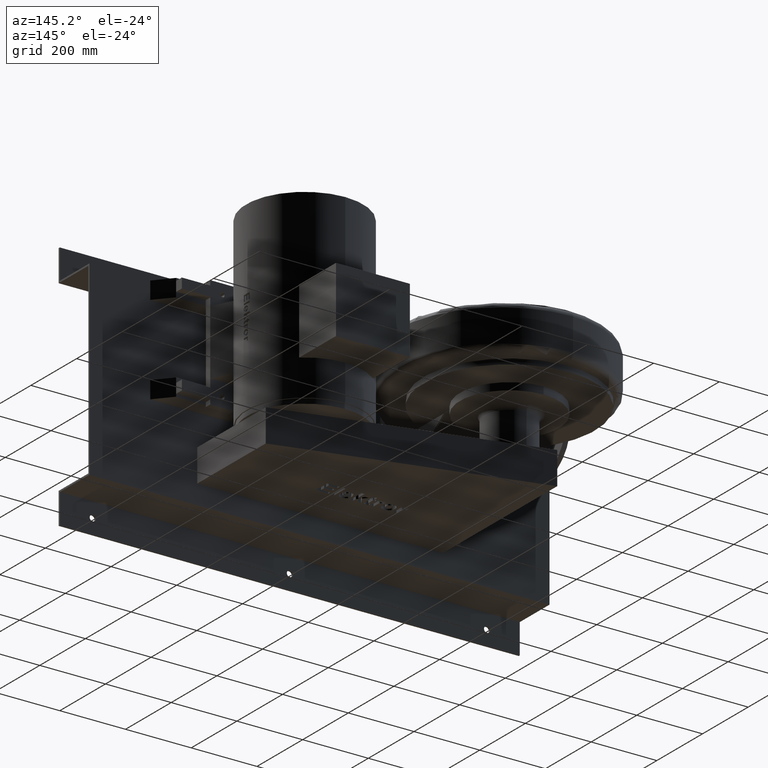
[diagram: clean part render]
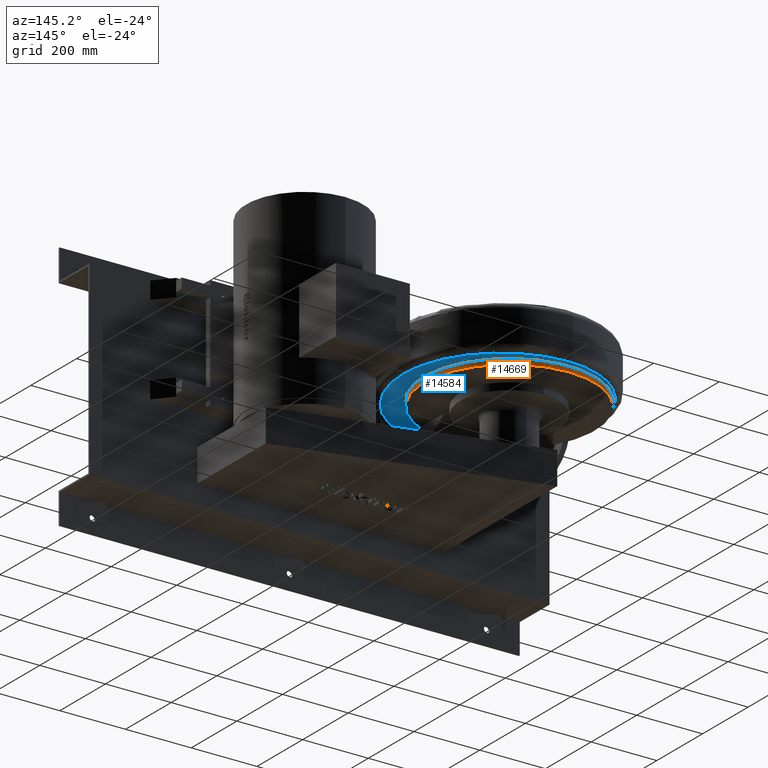
[diagram: same view with the hole feature highlighted: cylindrical wall and planar end face, labeled with their STEP entity ids]
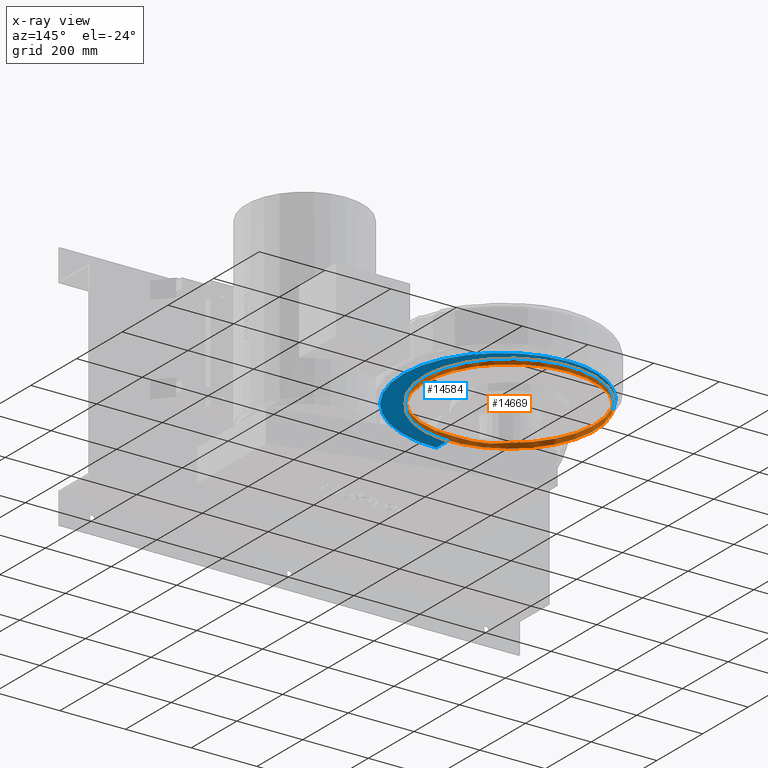
[diagram: x-ray of the same camera — body ghosted, the hole faces saturated]
A machine part, auxiliary view. The highlighted faces form one hole feature of diameter 520 mm: the cylindrical wall (entity #14669, orange) and its adjacent planar end face (entity #14584, blue) — they share a circular edge in the B-rep.
The next image is the same camera in x-ray (body ghosted, the hole faces saturated) — the bore reads through the body.
Wall:
#9930=CARTESIAN_POINT('',(-129.29514497830263,-201.28432938077296,-83.499999999999972));
#9931=VERTEX_POINT('',#9930);
#9932=CARTESIAN_POINT('',(15.000000000000053,14.999999999999837,-83.500000000000028));
#9933=DIRECTION('',(0.0,0.0,1.0));
#9934=DIRECTION('',(-1.0,0.0,0.0));
#9935=AXIS2_PLACEMENT_3D('',#9932,#9933,#9934);
#9936=CIRCLE('',#9935,260.0);
#9937=EDGE_CURVE('',#9931,#9931,#9936,.T.);
#14195=CARTESIAN_POINT('',(-127.78385606986525,-202.28499820700932,-67.499999999999986));
#14196=VERTEX_POINT('',#14195);
#14197=CARTESIAN_POINT('',(8.607027E-014,-244.56694704834834,-67.499999999999986));
#14198=VERTEX_POINT('',#14197);
#14199=CARTESIAN_POINT('',(-127.78385606986531,-202.28499820700929,-67.500000000000256));
#14200=CARTESIAN_POINT('',(-120.63344954904909,-206.98372395399605,-69.049078235236763));
#14201=CARTESIAN_POINT('',(-112.82312566753743,-211.60967633237152,-70.048768758409707));
#14202=CARTESIAN_POINT('',(-104.36253827624421,-215.9817838190973,-70.625431110676359));
#14203=CARTESIAN_POINT('',(-89.961617963732721,-223.42362781906201,-71.606978631923369));
#14204=CARTESIAN_POINT('',(-73.798836964944726,-230.06681221311464,-71.373698312276673));
#14205=CARTESIAN_POINT('',(-55.982769801065757,-235.12286259230478,-70.638708982274224));
#14206=CARTESIAN_POINT('',(-48.504063494670518,-237.24525669356663,-70.330180209517522));
#14207=CARTESIAN_POINT('',(-40.678389705746142,-239.09366482581873,-69.927391824939889));
#14208=CARTESIAN_POINT('',(-32.835029463704061,-240.56175370388789,-69.486678590416815));
#14209=CARTESIAN_POINT('',(-21.993629649955963,-242.59100366794678,-68.877507491394255));
#14210=CARTESIAN_POINT('',(-11.025580335152949,-243.92979464158799,-68.194863992198293));
#14211=CARTESIAN_POINT('',(8.437695E-014,-244.56694704834834,-67.499999999999986));
#14212=B_SPLINE_CURVE_WITH_KNOTS('',3,(#14199,#14200,#14201,#14202,#14203,#14204,#14205,#14206,#14207,#14208,#14209,#14210,#14211),.UNSPECIFIED.,.F.,.U.,(4,3,3,3,4),(-14.804292424850814,-11.442916999399056,-5.721458499699528,-3.319743947891267,0.0),.UNSPECIFIED.);
#14213=EDGE_CURVE('',#14196,#14198,#14212,.T.);
#14567=CARTESIAN_POINT('',(15.000000000000053,14.99999999999984,-67.500000000000028));
#14568=DIRECTION('',(0.0,0.0,1.0));
#14569=DIRECTION('',(-1.0,0.0,0.0));
#14570=AXIS2_PLACEMENT_3D('',#14567,#14568,#14569);
#14571=CIRCLE('',#14570,260.0);
#14572=EDGE_CURVE('',#14198,#14196,#14571,.T.);
#14657=CARTESIAN_POINT('',(15.000000000000053,14.999999999999856,-3.543247E-014));
#14658=DIRECTION('',(-6.833984E-031,2.368476E-016,1.0));
#14659=DIRECTION('',(-1.0,0.0,0.0));
#14660=AXIS2_PLACEMENT_3D('',#14657,#14658,#14659);
#14661=CYLINDRICAL_SURFACE('',#14660,260.0);
#14662=ORIENTED_EDGE('',*,*,#9937,.T.);
#14663=EDGE_LOOP('',(#14662));
#14664=FACE_OUTER_BOUND('',#14663,.T.);
#14665=ORIENTED_EDGE('',*,*,#14213,.F.);
#14666=ORIENTED_EDGE('',*,*,#14572,.F.);
#14667=EDGE_LOOP('',(#14665,#14666));
#14668=FACE_BOUND('',#14667,.T.);
#14669=ADVANCED_FACE('',(#14664,#14668),#14661,.T.);
End face:
#13904=CARTESIAN_POINT('',(30.000000000000071,296.99999999999983,-67.500000000000114));
#13905=VERTEX_POINT('',#13904);
#13913=CARTESIAN_POINT('',(-155.19419237354339,222.33333333333317,-67.500000000000085));
#13914=VERTEX_POINT('',#13913);
#13915=CARTESIAN_POINT('',(30.000000000000053,29.99999999999984,-67.500000000000043));
#13916=DIRECTION('',(-8.203909E-017,2.038274E-016,1.0));
#13917=DIRECTION('',(-0.373383455282049,0.927677096473573,-2.197181E-016));
#13918=AXIS2_PLACEMENT_3D('',#13915,#13916,#13917);
#13919=CIRCLE('',#13918,267.0);
#13920=EDGE_CURVE('',#13905,#13914,#13919,.T.);
#13947=CARTESIAN_POINT('',(9.372842E-014,-327.00000000000017,-67.499999999999957));
#13948=VERTEX_POINT('',#13947);
#13956=CARTESIAN_POINT('',(327.00000000000011,-1.603162E-013,-67.500000000000028));
#13957=VERTEX_POINT('',#13956);
#13958=CARTESIAN_POINT('',(5.329071E-014,-1.603162E-013,-67.500000000000028));
#13959=DIRECTION('',(-1.184238E-016,1.184238E-016,1.0));
#13960=DIRECTION('',(0.707106781186548,-0.707106781186547,1.674765E-016));
#13961=AXIS2_PLACEMENT_3D('',#13958,#13959,#13960);
#13962=CIRCLE('',#13961,327.0);
#13963=EDGE_CURVE('',#13948,#13957,#13962,.T.);
#13982=CARTESIAN_POINT('',(30.000000000000053,-1.603162E-013,-67.500000000000028));
#13983=DIRECTION('',(1.184238E-016,1.184238E-016,1.0));
#13984=DIRECTION('',(0.707106781186548,0.707106781186547,-1.674765E-016));
#13985=AXIS2_PLACEMENT_3D('',#13982,#13983,#13984);
#13986=CIRCLE('',#13985,297.0);
#13987=EDGE_CURVE('',#13957,#13905,#13986,.T.);
#13999=CARTESIAN_POINT('',(-142.58879906388901,-202.93830878871341,-67.499999999999986));
#14000=VERTEX_POINT('',#13999);
#14036=CARTESIAN_POINT('',(30.000000000000053,14.99999999999984,-67.500000000000028));
#14037=DIRECTION('',(6.964126E-017,2.264128E-017,1.0));
#14038=DIRECTION('',(-0.951002462149348,-0.309183306447612,7.322932E-017));
#14039=AXIS2_PLACEMENT_3D('',#14036,#14037,#14038);
#14040=CIRCLE('',#14039,278.0);
#14041=EDGE_CURVE('',#13914,#14000,#14040,.T.);
#14195=CARTESIAN_POINT('',(-127.78385606986525,-202.28499820700932,-67.499999999999986));
#14196=VERTEX_POINT('',#14195);
#14197=CARTESIAN_POINT('',(8.607027E-014,-244.56694704834834,-67.499999999999986));
#14198=VERTEX_POINT('',#14197);
#14215=CARTESIAN_POINT('',(8.881784E-014,-261.37655472199538,-67.499999999999972));
#14216=VERTEX_POINT('',#14215);
#14217=CARTESIAN_POINT('',(8.847435E-014,-261.37655472199538,-67.499999999999972));
#14218=DIRECTION('',(0.0,1.0,0.0));
#14219=VECTOR('',#14218,16.809607673647008);
#14220=LINE('',#14217,#14219);
#14221=EDGE_CURVE('',#14216,#14198,#14220,.T.);
#14223=CARTESIAN_POINT('',(9.282007E-014,-317.97262118526442,-67.499999999999972));
#14224=VERTEX_POINT('',#14223);
#14225=CARTESIAN_POINT('',(8.712524E-014,-261.37655472199538,-67.499999999999972));
#14226=DIRECTION('',(0.0,-1.0,0.0));
#14227=VECTOR('',#14226,56.59606646326904);
#14228=LINE('',#14225,#14227);
#14229=EDGE_CURVE('',#14216,#14224,#14228,.T.);
#14231=CARTESIAN_POINT('',(9.282007E-014,-317.97262118526442,-67.499999999999957));
#14232=DIRECTION('',(0.0,-1.0,0.0));
#14233=VECTOR('',#14232,9.027378814735755);
#14234=LINE('',#14231,#14233);
#14235=EDGE_CURVE('',#14224,#13948,#14234,.T.);
#14255=CARTESIAN_POINT('',(-127.78385606986525,-202.28499820700932,-67.499999999999986));
#14256=CARTESIAN_POINT('',(-132.71883706787318,-202.50276840091072,-67.499999999999986));
#14257=CARTESIAN_POINT('',(-137.6538180658811,-202.72053859481207,-67.499999999999986));
#14258=CARTESIAN_POINT('',(-142.58879906388901,-202.93830878871341,-67.499999999999986));
#14259=B_SPLINE_CURVE_WITH_KNOTS('',3,(#14255,#14256,#14257,#14258),.UNSPECIFIED.,.F.,.U.,(4,4),(12.753307901752059,14.235242960290249),.UNSPECIFIED.);
#14260=EDGE_CURVE('',#14196,#14000,#14259,.T.);
#14562=CARTESIAN_POINT('',(43.865764742339984,-7.084265784001103,-67.500000000000028));
#14563=DIRECTION('',(0.0,0.0,1.0));
#14564=DIRECTION('',(1.0,0.0,0.0));
#14565=AXIS2_PLACEMENT_3D('',#14562,#14563,#14564);
#14566=PLANE('',#14565);
#14567=CARTESIAN_POINT('',(15.000000000000053,14.99999999999984,-67.500000000000028));
#14568=DIRECTION('',(0.0,0.0,1.0));
#14569=DIRECTION('',(-1.0,0.0,0.0));
#14570=AXIS2_PLACEMENT_3D('',#14567,#14568,#14569);
#14571=CIRCLE('',#14570,260.0);
#14572=EDGE_CURVE('',#14198,#14196,#14571,.T.);
#14573=ORIENTED_EDGE('',*,*,#14572,.T.);
#14574=ORIENTED_EDGE('',*,*,#14260,.T.);
#14575=ORIENTED_EDGE('',*,*,#14041,.F.);
#14576=ORIENTED_EDGE('',*,*,#13920,.F.);
#14577=ORIENTED_EDGE('',*,*,#13987,.F.);
#14578=ORIENTED_EDGE('',*,*,#13963,.F.);
#14579=ORIENTED_EDGE('',*,*,#14235,.F.);
#14580=ORIENTED_EDGE('',*,*,#14229,.F.);
#14581=ORIENTED_EDGE('',*,*,#14221,.T.);
#14582=EDGE_LOOP('',(#14573,#14574,#14575,#14576,#14577,#14578,#14579,#14580,#14581));
#14583=FACE_OUTER_BOUND('',#14582,.T.);
#14584=ADVANCED_FACE('',(#14583),#14566,.F.);